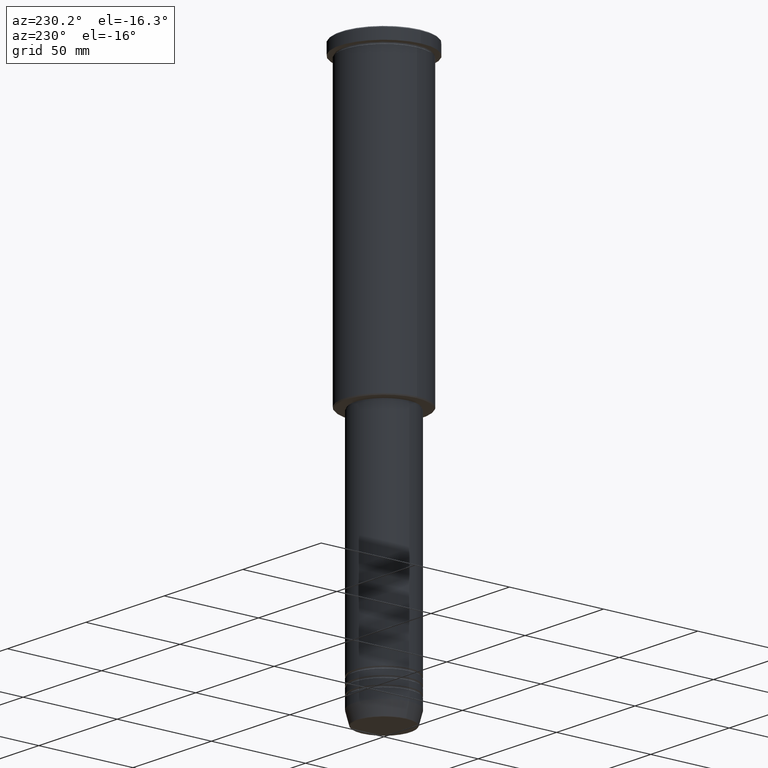
[diagram: clean part render]
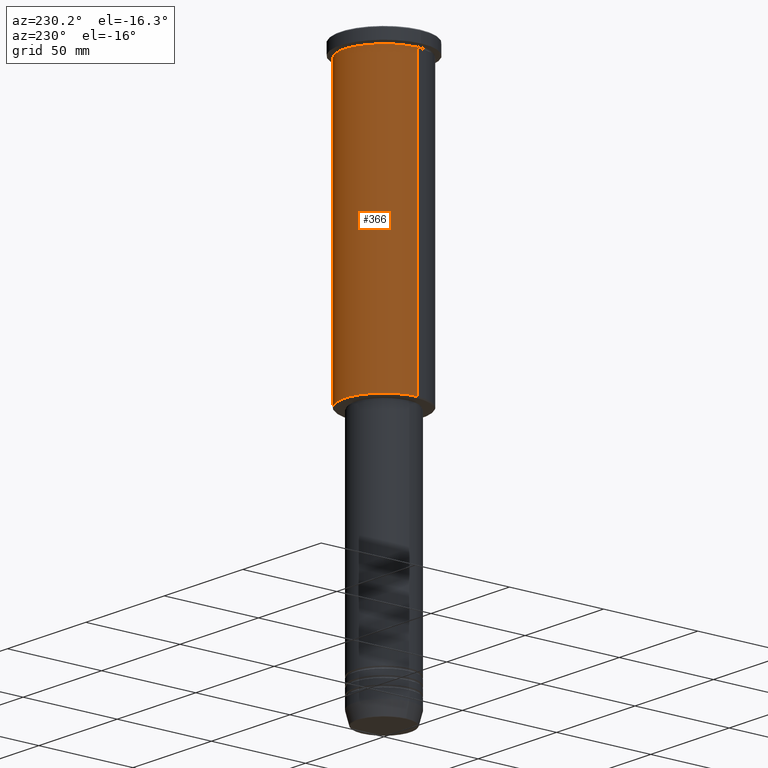
[diagram: same view with one face highlighted and labeled with its STEP entity id]
A machine part, auxiliary view. The second image highlights one B-rep face of the part: STEP entity #366.
In plain terms, the highlighted cylindrical surface (partial cylindrical patch) has radius 21 mm, axis along (-0, -0, 1).
Its self-contained STEP definition (entity closure, byte-faithful):
#14 = ORIENTED_EDGE ( 'NONE', *, *, #799, .F. ) ;
#70 = EDGE_CURVE ( 'NONE', #1133, #694, #863, .T. ) ;
#72 = ORIENTED_EDGE ( 'NONE', *, *, #70, .T. ) ;
#156 = VECTOR ( 'NONE', #173, 1000.000000000000000 ) ;
#160 = CARTESIAN_POINT ( 'NONE',  ( -21.00000000000000000, 2.571758278209441661E-15, 0.000000000000000000 ) ) ;
#162 = VERTEX_POINT ( 'NONE', #974 ) ;
#173 = DIRECTION ( 'NONE',  ( -0.000000000000000000, -0.000000000000000000, 1.000000000000000000 ) ) ;
#227 = CARTESIAN_POINT ( 'NONE',  ( 21.00000000000000000, 0.000000000000000000, -155.4999999999999147 ) ) ;
#238 = DIRECTION ( 'NONE',  ( -0.000000000000000000, -0.000000000000000000, 1.000000000000000000 ) ) ;
#263 = CARTESIAN_POINT ( 'NONE',  ( 0.000000000000000000, 0.000000000000000000, -6.999999999999993783 ) ) ;
#308 = CARTESIAN_POINT ( 'NONE',  ( -21.00000000000000000, 2.571758278209441661E-15, -155.4999999999999147 ) ) ;
#344 = VECTOR ( 'NONE', #1135, 1000.000000000000000 ) ;
#366 = ADVANCED_FACE ( 'NONE', ( #762 ), #491, .T. ) ;
#376 = AXIS2_PLACEMENT_3D ( 'NONE', #869, #977, #415 ) ;
#415 = DIRECTION ( 'NONE',  ( -1.000000000000000000, 0.000000000000000000, 0.000000000000000000 ) ) ;
#423 = EDGE_CURVE ( 'NONE', #694, #162, #651, .T. ) ;
#491 = CYLINDRICAL_SURFACE ( 'NONE', #942, 21.00000000000000000 ) ;
#494 = VERTEX_POINT ( 'NONE', #812 ) ;
#611 = DIRECTION ( 'NONE',  ( 1.000000000000000000, 0.000000000000000000, 0.000000000000000000 ) ) ;
#637 = EDGE_LOOP ( 'NONE', ( #72, #844, #1093, #14 ) ) ;
#649 = AXIS2_PLACEMENT_3D ( 'NONE', #263, #980, #727 ) ;
#651 = LINE ( 'NONE', #160, #156 ) ;
#694 = VERTEX_POINT ( 'NONE', #308 ) ;
#707 = CARTESIAN_POINT ( 'NONE',  ( 21.00000000000000000, 0.000000000000000000, 0.000000000000000000 ) ) ;
#727 = DIRECTION ( 'NONE',  ( 1.000000000000000000, 0.000000000000000000, 0.000000000000000000 ) ) ;
#745 = CIRCLE ( 'NONE', #649, 21.00000000000000000 ) ;
#762 = FACE_OUTER_BOUND ( 'NONE', #637, .T. ) ;
#771 = LINE ( 'NONE', #707, #344 ) ;
#782 = CARTESIAN_POINT ( 'NONE',  ( 0.000000000000000000, 0.000000000000000000, 0.000000000000000000 ) ) ;
#799 = EDGE_CURVE ( 'NONE', #1133, #494, #771, .T. ) ;
#812 = CARTESIAN_POINT ( 'NONE',  ( 21.00000000000000000, 0.000000000000000000, -6.999999999999993783 ) ) ;
#841 = EDGE_CURVE ( 'NONE', #494, #162, #745, .T. ) ;
#844 = ORIENTED_EDGE ( 'NONE', *, *, #423, .T. ) ;
#863 = CIRCLE ( 'NONE', #376, 21.00000000000000000 ) ;
#869 = CARTESIAN_POINT ( 'NONE',  ( 0.000000000000000000, 0.000000000000000000, -155.4999999999999147 ) ) ;
#942 = AXIS2_PLACEMENT_3D ( 'NONE', #782, #238, #611 ) ;
#974 = CARTESIAN_POINT ( 'NONE',  ( -21.00000000000000000, 2.571758278209441661E-15, -6.999999999999993783 ) ) ;
#977 = DIRECTION ( 'NONE',  ( -0.000000000000000000, -0.000000000000000000, 1.000000000000000000 ) ) ;
#980 = DIRECTION ( 'NONE',  ( -0.000000000000000000, -0.000000000000000000, 1.000000000000000000 ) ) ;
#1093 = ORIENTED_EDGE ( 'NONE', *, *, #841, .F. ) ;
#1133 = VERTEX_POINT ( 'NONE', #227 ) ;
#1135 = DIRECTION ( 'NONE',  ( -0.000000000000000000, -0.000000000000000000, 1.000000000000000000 ) ) ;